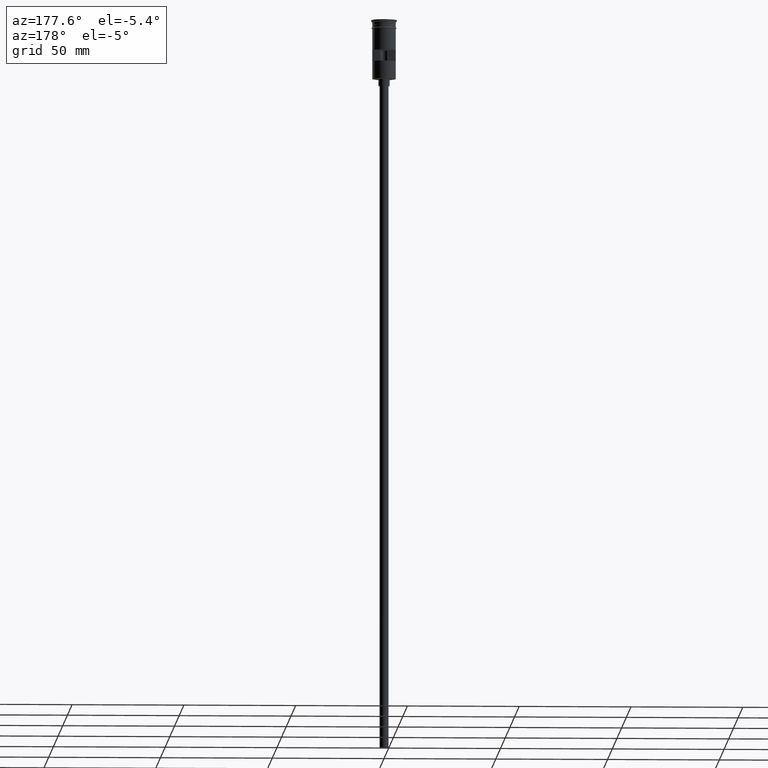
[diagram: clean part render]
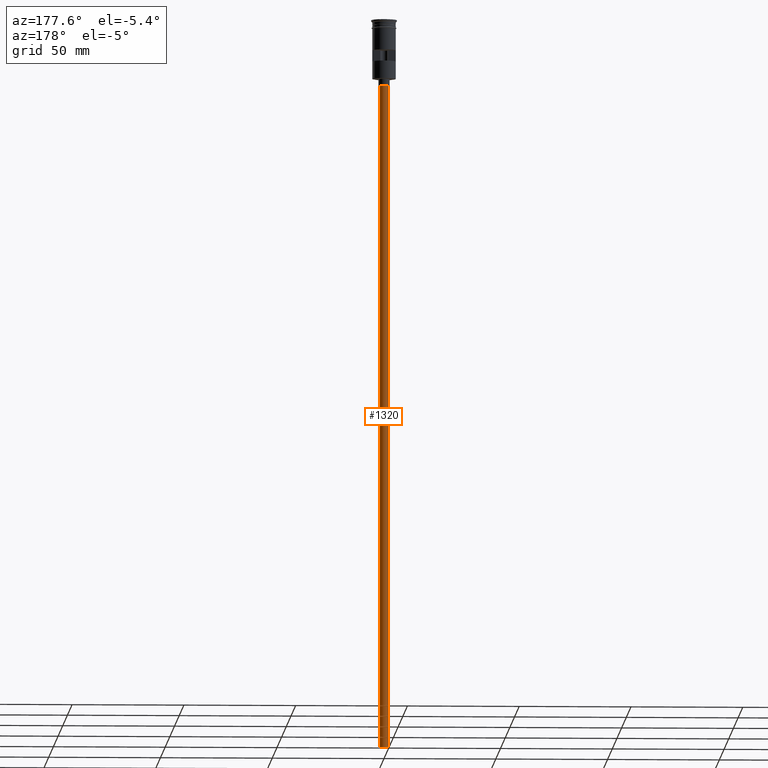
[diagram: same view with one face highlighted and labeled with its STEP entity id]
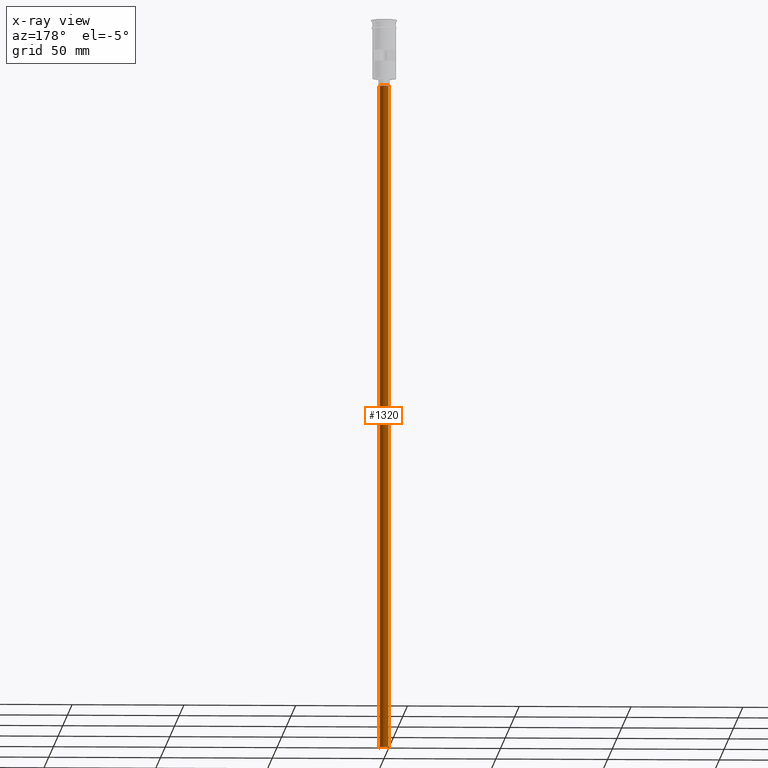
[diagram: x-ray of the same camera — body ghosted, the highlighted face saturated]
A machine part, auxiliary view. The second image highlights one B-rep face of the part: STEP entity #1320.
The next image is the same camera in x-ray: the body ghosted, the highlighted face saturated — about 0% of this face is hidden behind the body in this view.
In plain terms, the highlighted cylindrical surface (edge-blend (fillet) strip) has radius 2 mm, axis along (-0, -0, 1).
Its self-contained STEP definition (entity closure, byte-faithful):
#42 = EDGE_CURVE ( 'NONE', #764, #1330, #1537, .T. ) ;
#110 = CIRCLE ( 'NONE', #1202, 2.000000000000000000 ) ;
#116 = DIRECTION ( 'NONE',  ( 0.000000000000000000, 0.000000000000000000, -1.000000000000000000 ) ) ;
#142 = LINE ( 'NONE', #1343, #1354 ) ;
#203 = LINE ( 'NONE', #333, #763 ) ;
#235 = DIRECTION ( 'NONE',  ( 1.000000000000000000, 0.000000000000000000, 0.000000000000000000 ) ) ;
#293 = VERTEX_POINT ( 'NONE', #1172 ) ;
#333 = CARTESIAN_POINT ( 'NONE',  ( 2.000000000000000000, 0.000000000000000000, -326.5000000000000000 ) ) ;
#338 = DIRECTION ( 'NONE',  ( -1.000000000000000000, 0.000000000000000000, 0.000000000000000000 ) ) ;
#395 = EDGE_CURVE ( 'NONE', #1451, #1330, #203, .T. ) ;
#439 = AXIS2_PLACEMENT_3D ( 'NONE', #1233, #1348, #235 ) ;
#447 = DIRECTION ( 'NONE',  ( -0.000000000000000000, -0.000000000000000000, 1.000000000000000000 ) ) ;
#472 = DIRECTION ( 'NONE',  ( 0.000000000000000000, 0.000000000000000000, -1.000000000000000000 ) ) ;
#488 = DIRECTION ( 'NONE',  ( -0.000000000000000000, -0.000000000000000000, 1.000000000000000000 ) ) ;
#491 = ORIENTED_EDGE ( 'NONE', *, *, #395, .F. ) ;
#492 = FACE_OUTER_BOUND ( 'NONE', #1223, .T. ) ;
#519 = CARTESIAN_POINT ( 'NONE',  ( 2.000000000000000000, 0.000000000000000000, -326.5000000000000000 ) ) ;
#558 = EDGE_CURVE ( 'NONE', #293, #764, #142, .T. ) ;
#617 = CARTESIAN_POINT ( 'NONE',  ( 0.000000000000000000, 0.000000000000000000, -326.5000000000000000 ) ) ;
#763 = VECTOR ( 'NONE', #447, 1000.000000000000000 ) ;
#764 = VERTEX_POINT ( 'NONE', #1068 ) ;
#779 = EDGE_CURVE ( 'NONE', #293, #1451, #110, .T. ) ;
#791 = ORIENTED_EDGE ( 'NONE', *, *, #42, .T. ) ;
#855 = CYLINDRICAL_SURFACE ( 'NONE', #439, 2.000000000000000000 ) ;
#868 = CARTESIAN_POINT ( 'NONE',  ( 2.000000000000000000, 0.000000000000000000, -29.50000000000000000 ) ) ;
#950 = CARTESIAN_POINT ( 'NONE',  ( 0.000000000000000000, 0.000000000000000000, -29.50000000000000000 ) ) ;
#1068 = CARTESIAN_POINT ( 'NONE',  ( -2.000000000000000000, 2.449293598294706414E-16, -29.50000000000000000 ) ) ;
#1094 = DIRECTION ( 'NONE',  ( -1.000000000000000000, 0.000000000000000000, 0.000000000000000000 ) ) ;
#1168 = ORIENTED_EDGE ( 'NONE', *, *, #779, .F. ) ;
#1172 = CARTESIAN_POINT ( 'NONE',  ( -2.000000000000000000, 2.449293598294706414E-16, -326.5000000000000000 ) ) ;
#1188 = ORIENTED_EDGE ( 'NONE', *, *, #558, .T. ) ;
#1202 = AXIS2_PLACEMENT_3D ( 'NONE', #617, #116, #1094 ) ;
#1223 = EDGE_LOOP ( 'NONE', ( #1168, #1188, #791, #491 ) ) ;
#1233 = CARTESIAN_POINT ( 'NONE',  ( 0.000000000000000000, 0.000000000000000000, -326.5000000000000000 ) ) ;
#1320 = ADVANCED_FACE ( 'NONE', ( #492 ), #855, .T. ) ;
#1330 = VERTEX_POINT ( 'NONE', #868 ) ;
#1343 = CARTESIAN_POINT ( 'NONE',  ( -2.000000000000000000, 2.449293598294706414E-16, -326.5000000000000000 ) ) ;
#1348 = DIRECTION ( 'NONE',  ( -0.000000000000000000, -0.000000000000000000, 1.000000000000000000 ) ) ;
#1354 = VECTOR ( 'NONE', #488, 1000.000000000000000 ) ;
#1451 = VERTEX_POINT ( 'NONE', #519 ) ;
#1537 = CIRCLE ( 'NONE', #1561, 2.000000000000000000 ) ;
#1561 = AXIS2_PLACEMENT_3D ( 'NONE', #950, #472, #338 ) ;